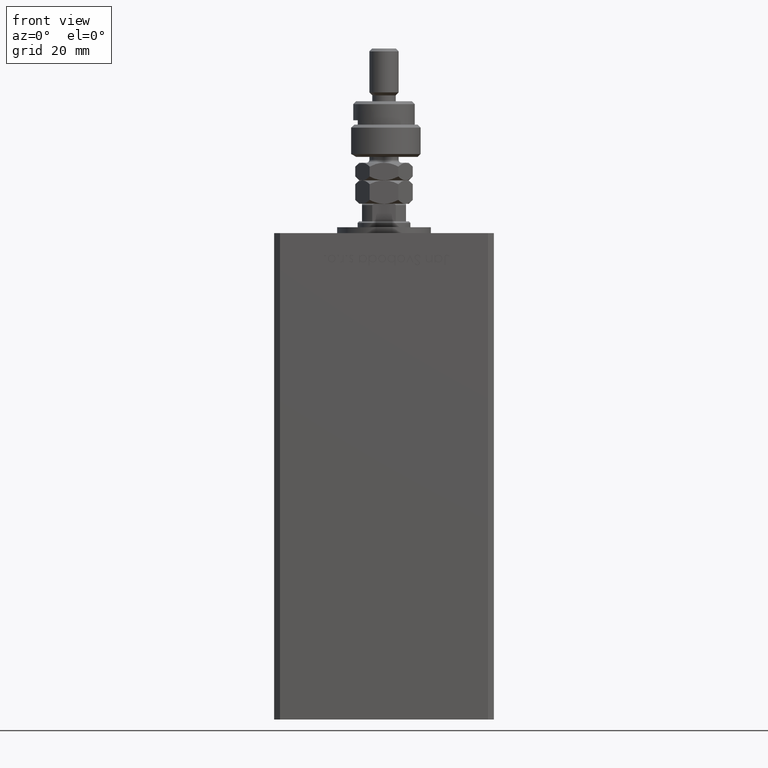
[diagram: clean part render]
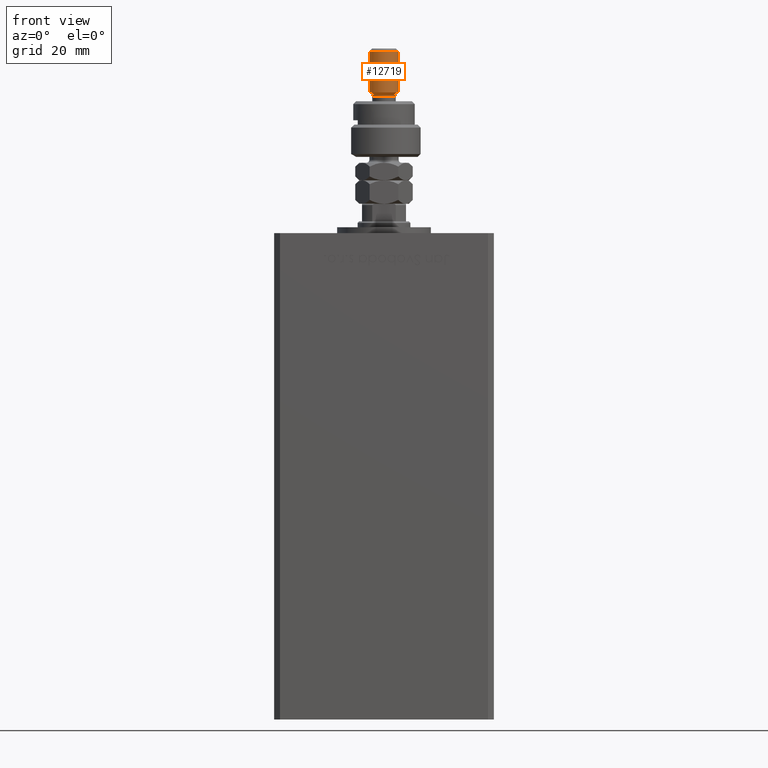
[diagram: same view with one face highlighted and labeled with its STEP entity id]
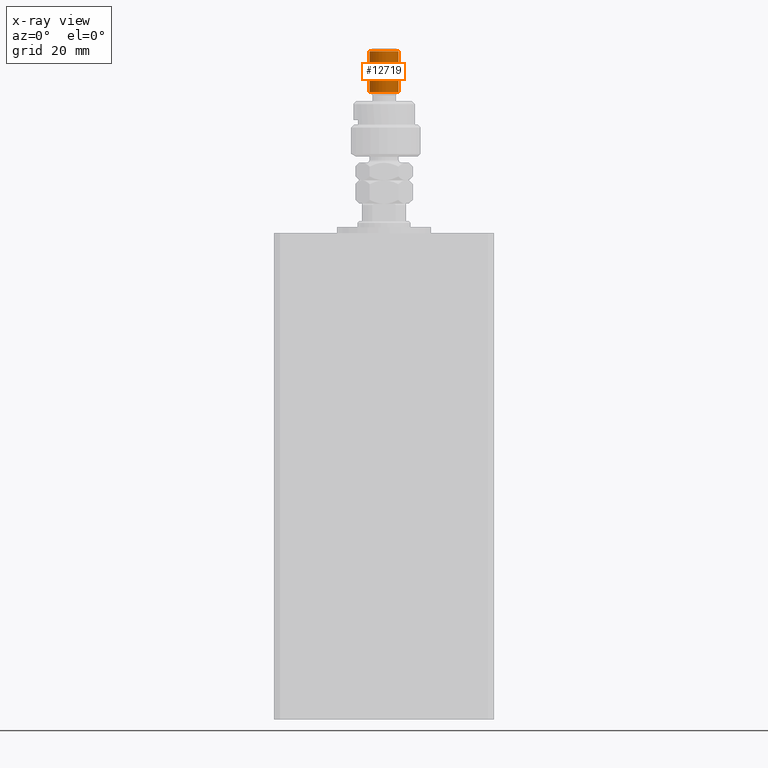
[diagram: x-ray of the same camera — body ghosted, the highlighted face saturated]
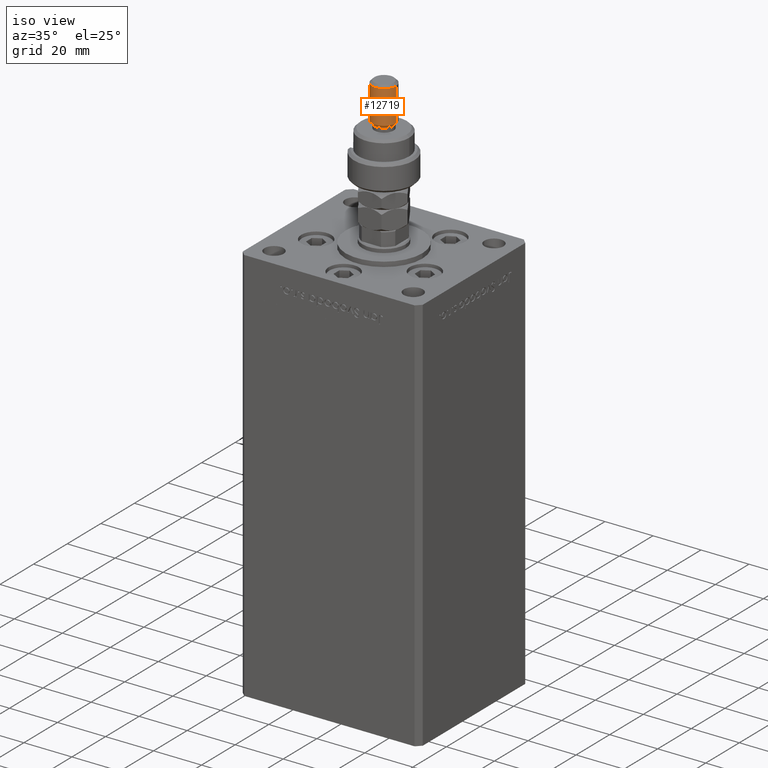
[diagram: same view with one face highlighted and labeled with its STEP entity id]
A machine part, front view. The second image highlights one B-rep face of the part: STEP entity #12719.
The next image is the same camera in x-ray: the body ghosted, the highlighted face saturated — about 0% of this face is hidden behind the body in this view.
A second angle (iso view) of the same face is appended — the face is thin or edge-on in the first view.
In plain terms, the highlighted cylindrical surface (edge-blend (fillet) strip) has radius 5 mm, axis along (-0, -0, -1).
Its self-contained STEP definition (entity closure, byte-faithful):
#2866 = CARTESIAN_POINT ( 'NONE',  ( 0.000000000000000000, 0.000000000000000000, 37.00000000000000000 ) ) ;
#3943 = DIRECTION ( 'NONE',  ( -0.000000000000000000, -0.000000000000000000, -1.000000000000000000 ) ) ;
#5054 = ORIENTED_EDGE ( 'NONE', *, *, #17845, .F. ) ;
#6095 = DIRECTION ( 'NONE',  ( 1.000000000000000000, 0.000000000000000000, 0.000000000000000000 ) ) ;
#6469 = VERTEX_POINT ( 'NONE', #15584 ) ;
#6891 = EDGE_CURVE ( 'NONE', #29037, #6469, #37310, .T. ) ;
#8889 = LINE ( 'NONE', #46990, #42853 ) ;
#12129 = DIRECTION ( 'NONE',  ( -0.000000000000000000, -0.000000000000000000, -1.000000000000000000 ) ) ;
#12719 = ADVANCED_FACE ( 'NONE', ( #45901 ), #24893, .T. ) ;
#13146 = CARTESIAN_POINT ( 'NONE',  ( 5.000000000000000888, 6.123233995736767268E-16, 21.99999999999999289 ) ) ;
#14353 = DIRECTION ( 'NONE',  ( -0.000000000000000000, -0.000000000000000000, 1.000000000000000000 ) ) ;
#15433 = ORIENTED_EDGE ( 'NONE', *, *, #6891, .T. ) ;
#15584 = CARTESIAN_POINT ( 'NONE',  ( -5.000000000000000888, 0.000000000000000000, 36.00000000000000711 ) ) ;
#16904 = EDGE_CURVE ( 'NONE', #21051, #41844, #18933, .T. ) ;
#17152 = DIRECTION ( 'NONE',  ( -0.000000000000000000, -0.000000000000000000, -1.000000000000000000 ) ) ;
#17845 = EDGE_CURVE ( 'NONE', #29037, #41844, #24536, .T. ) ;
#18277 = EDGE_CURVE ( 'NONE', #6469, #21051, #8889, .T. ) ;
#18933 = CIRCLE ( 'NONE', #49823, 5.000000000000000888 ) ;
#19109 = ORIENTED_EDGE ( 'NONE', *, *, #18277, .T. ) ;
#21051 = VERTEX_POINT ( 'NONE', #41053 ) ;
#24536 = LINE ( 'NONE', #28133, #44536 ) ;
#24893 = CYLINDRICAL_SURFACE ( 'NONE', #44539, 5.000000000000000888 ) ;
#26466 = EDGE_LOOP ( 'NONE', ( #5054, #15433, #19109, #38247 ) ) ;
#27040 = DIRECTION ( 'NONE',  ( 0.000000000000000000, 0.000000000000000000, -1.000000000000000000 ) ) ;
#27305 = CARTESIAN_POINT ( 'NONE',  ( 0.000000000000000000, 0.000000000000000000, 36.00000000000000711 ) ) ;
#28133 = CARTESIAN_POINT ( 'NONE',  ( 5.000000000000000888, 6.123233995736767268E-16, 37.00000000000000000 ) ) ;
#29037 = VERTEX_POINT ( 'NONE', #32700 ) ;
#29340 = AXIS2_PLACEMENT_3D ( 'NONE', #27305, #27040, #35881 ) ;
#32700 = CARTESIAN_POINT ( 'NONE',  ( 5.000000000000000888, 6.123233995736767268E-16, 36.00000000000000711 ) ) ;
#35881 = DIRECTION ( 'NONE',  ( 1.000000000000000000, 0.000000000000000000, 0.000000000000000000 ) ) ;
#37310 = CIRCLE ( 'NONE', #29340, 5.000000000000000888 ) ;
#38247 = ORIENTED_EDGE ( 'NONE', *, *, #16904, .T. ) ;
#40680 = DIRECTION ( 'NONE',  ( -1.000000000000000000, 0.000000000000000000, 0.000000000000000000 ) ) ;
#41053 = CARTESIAN_POINT ( 'NONE',  ( -5.000000000000000888, 0.000000000000000000, 21.99999999999999289 ) ) ;
#41844 = VERTEX_POINT ( 'NONE', #13146 ) ;
#42853 = VECTOR ( 'NONE', #17152, 1000.000000000000000 ) ;
#44536 = VECTOR ( 'NONE', #12129, 1000.000000000000000 ) ;
#44539 = AXIS2_PLACEMENT_3D ( 'NONE', #2866, #3943, #40680 ) ;
#45901 = FACE_OUTER_BOUND ( 'NONE', #26466, .T. ) ;
#46990 = CARTESIAN_POINT ( 'NONE',  ( -5.000000000000000888, 0.000000000000000000, 37.00000000000000000 ) ) ;
#48054 = CARTESIAN_POINT ( 'NONE',  ( 0.000000000000000000, 0.000000000000000000, 21.99999999999999289 ) ) ;
#49823 = AXIS2_PLACEMENT_3D ( 'NONE', #48054, #14353, #6095 ) ;